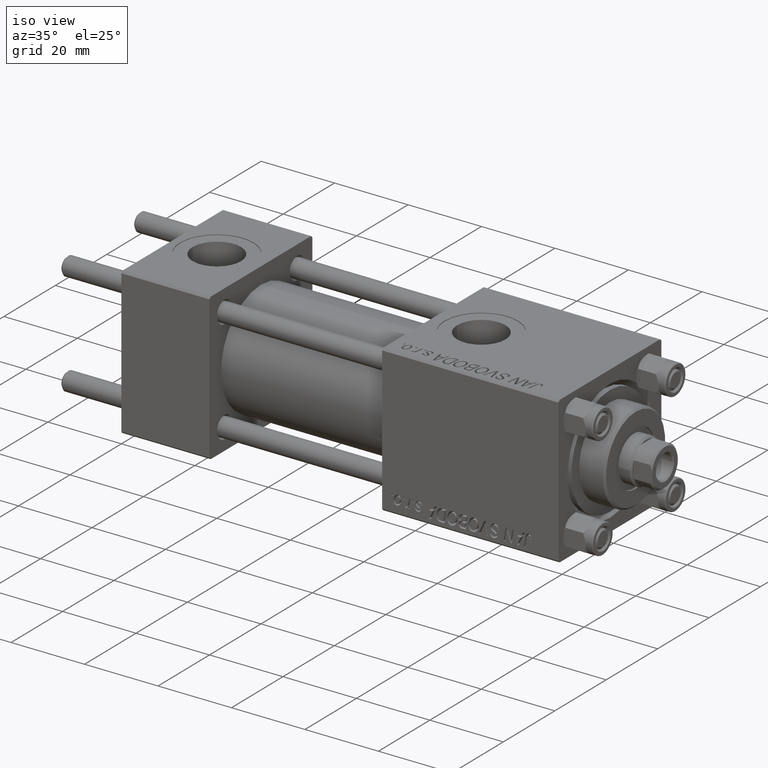
[diagram: clean part render]
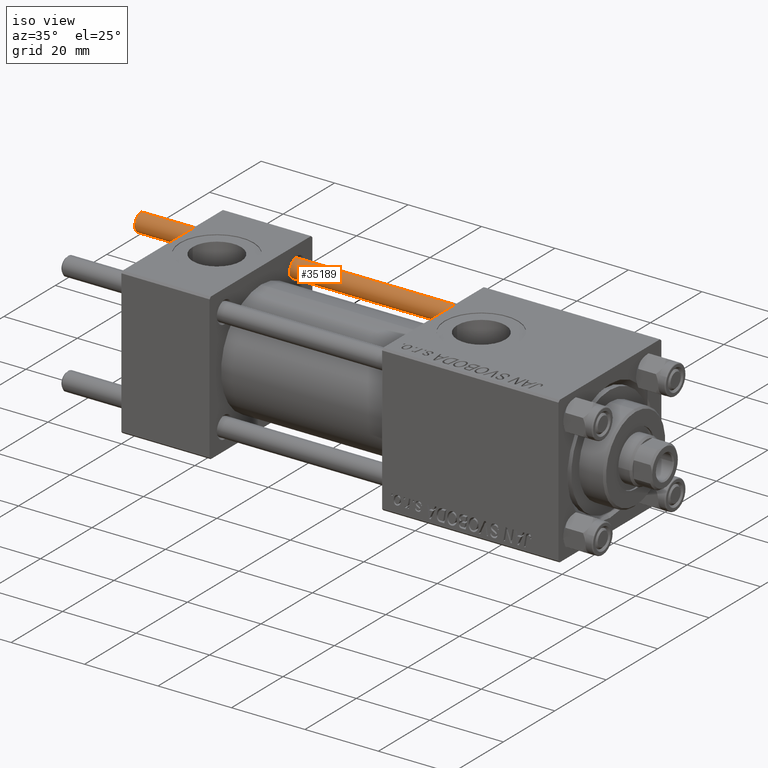
[diagram: same view with one face highlighted and labeled with its STEP entity id]
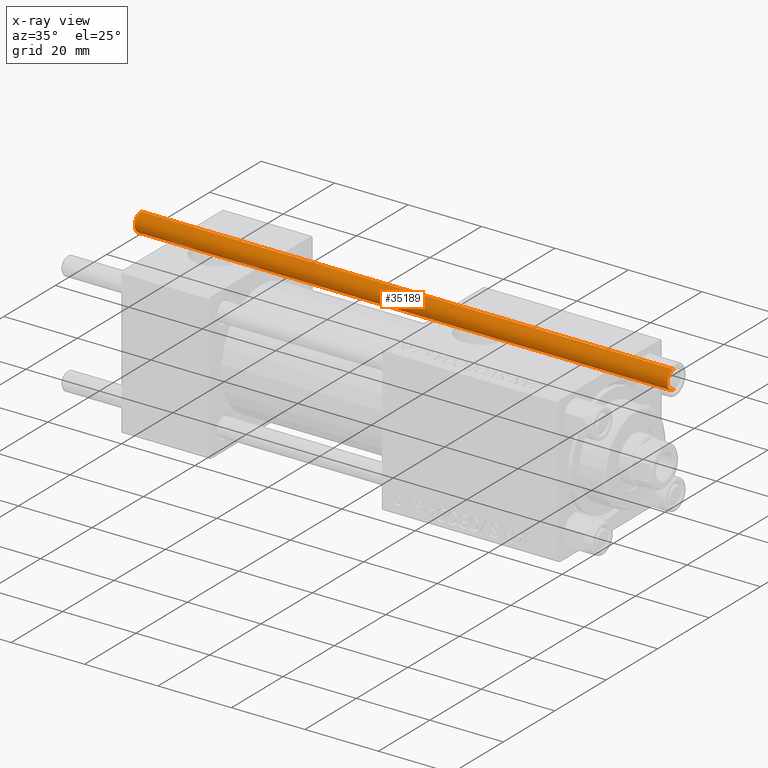
[diagram: x-ray of the same camera — body ghosted, the highlighted face saturated]
A machine part, iso view. The second image highlights one B-rep face of the part: STEP entity #35189.
The next image is the same camera in x-ray: the body ghosted, the highlighted face saturated — about 1% of this face is hidden behind the body in this view.
In plain terms, the highlighted cylindrical surface (edge-blend (fillet) strip) has radius 2.5 mm, axis along (-1, -0, -0).
Its self-contained STEP definition (entity closure, byte-faithful):
#660 = EDGE_CURVE ( 'NONE', #1181, #37703, #46919, .T. ) ;
#1181 = VERTEX_POINT ( 'NONE', #38243 ) ;
#1745 = EDGE_CURVE ( 'NONE', #29856, #39888, #32743, .T. ) ;
#2535 = ORIENTED_EDGE ( 'NONE', *, *, #1745, .T. ) ;
#2957 = DIRECTION ( 'NONE',  ( 0.000000000000000000, 0.000000000000000000, -1.000000000000000000 ) ) ;
#3084 = EDGE_CURVE ( 'NONE', #1181, #29856, #43917, .T. ) ;
#5016 = CARTESIAN_POINT ( 'NONE',  ( -2.500000000000000000, 0.000000000000000000, 145.5000000000000284 ) ) ;
#5598 = CYLINDRICAL_SURFACE ( 'NONE', #24470, 2.500000000000000000 ) ;
#5838 = FACE_OUTER_BOUND ( 'NONE', #14071, .T. ) ;
#10916 = AXIS2_PLACEMENT_3D ( 'NONE', #17809, #2957, #29898 ) ;
#12615 = DIRECTION ( 'NONE',  ( -0.000000000000000000, -0.000000000000000000, -1.000000000000000000 ) ) ;
#12809 = ORIENTED_EDGE ( 'NONE', *, *, #3084, .T. ) ;
#14071 = EDGE_LOOP ( 'NONE', ( #35356, #12809, #2535, #21837 ) ) ;
#15478 = CARTESIAN_POINT ( 'NONE',  ( 0.000000000000000000, 0.000000000000000000, 0.5000000000000559552 ) ) ;
#16675 = DIRECTION ( 'NONE',  ( -1.000000000000000000, 0.000000000000000000, 0.000000000000000000 ) ) ;
#17809 = CARTESIAN_POINT ( 'NONE',  ( 0.000000000000000000, 0.000000000000000000, 145.5000000000000284 ) ) ;
#21837 = ORIENTED_EDGE ( 'NONE', *, *, #36674, .T. ) ;
#23760 = DIRECTION ( 'NONE',  ( -0.000000000000000000, -0.000000000000000000, -1.000000000000000000 ) ) ;
#24470 = AXIS2_PLACEMENT_3D ( 'NONE', #43375, #40086, #16675 ) ;
#29856 = VERTEX_POINT ( 'NONE', #5016 ) ;
#29898 = DIRECTION ( 'NONE',  ( 1.000000000000000000, 0.000000000000000000, 0.000000000000000000 ) ) ;
#30160 = VECTOR ( 'NONE', #23760, 1000.000000000000000 ) ;
#30948 = CIRCLE ( 'NONE', #42182, 2.500000000000000000 ) ;
#32743 = LINE ( 'NONE', #36279, #46292 ) ;
#34341 = CARTESIAN_POINT ( 'NONE',  ( 2.500000000000000000, 3.061616997868383141E-16, 146.0000000000000000 ) ) ;
#35189 = ADVANCED_FACE ( 'NONE', ( #5838 ), #5598, .T. ) ;
#35356 = ORIENTED_EDGE ( 'NONE', *, *, #660, .F. ) ;
#36279 = CARTESIAN_POINT ( 'NONE',  ( -2.500000000000000000, 0.000000000000000000, 146.0000000000000000 ) ) ;
#36674 = EDGE_CURVE ( 'NONE', #39888, #37703, #30948, .T. ) ;
#37703 = VERTEX_POINT ( 'NONE', #39093 ) ;
#38142 = DIRECTION ( 'NONE',  ( -0.000000000000000000, -0.000000000000000000, 1.000000000000000000 ) ) ;
#38243 = CARTESIAN_POINT ( 'NONE',  ( 2.500000000000000000, 3.061616997868383141E-16, 145.5000000000000284 ) ) ;
#39093 = CARTESIAN_POINT ( 'NONE',  ( 2.500000000000000000, 3.061616997868383141E-16, 0.5000000000000559552 ) ) ;
#39888 = VERTEX_POINT ( 'NONE', #39991 ) ;
#39991 = CARTESIAN_POINT ( 'NONE',  ( -2.500000000000000000, 0.000000000000000000, 0.5000000000000559552 ) ) ;
#40086 = DIRECTION ( 'NONE',  ( -0.000000000000000000, -0.000000000000000000, -1.000000000000000000 ) ) ;
#42182 = AXIS2_PLACEMENT_3D ( 'NONE', #15478, #38142, #49722 ) ;
#43375 = CARTESIAN_POINT ( 'NONE',  ( 0.000000000000000000, 0.000000000000000000, 146.0000000000000000 ) ) ;
#43917 = CIRCLE ( 'NONE', #10916, 2.500000000000000000 ) ;
#46292 = VECTOR ( 'NONE', #12615, 1000.000000000000000 ) ;
#46919 = LINE ( 'NONE', #34341, #30160 ) ;
#49722 = DIRECTION ( 'NONE',  ( 1.000000000000000000, 0.000000000000000000, 0.000000000000000000 ) ) ;